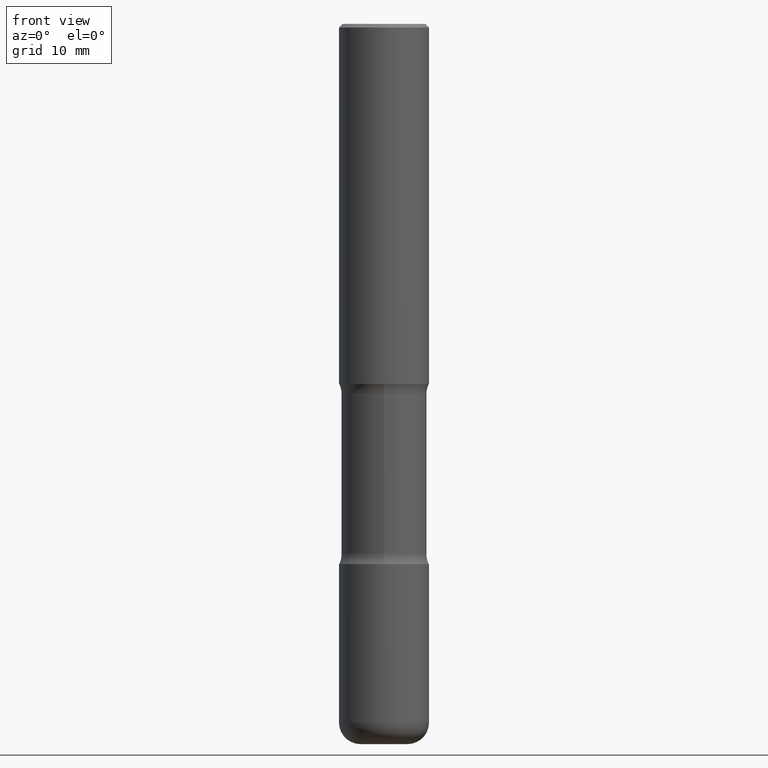
[diagram: clean part render]
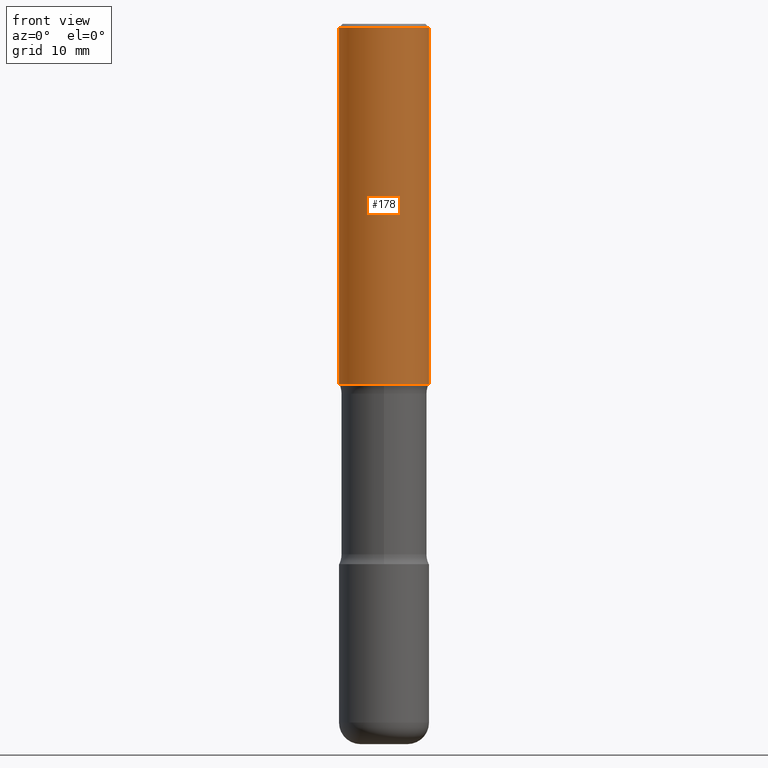
[diagram: same view with one face highlighted and labeled with its STEP entity id]
A machine part, front view. The second image highlights one B-rep face of the part: STEP entity #178.
In plain terms, the highlighted cylindrical surface (partial cylindrical patch) has radius 6.35 mm, axis along (-0, 0, 1).
Its self-contained STEP definition (entity closure, byte-faithful):
#32 = VERTEX_POINT ( 'NONE', #112 ) ;
#41 = LINE ( 'NONE', #267, #84 ) ;
#49 = CARTESIAN_POINT ( 'NONE',  ( 0.000000000000000000, 0.000000000000000000, 0.000000000000000000 ) ) ;
#57 = CIRCLE ( 'NONE', #109, 0.2499999999999999167 ) ;
#80 = EDGE_CURVE ( 'NONE', #295, #490, #41, .T. ) ;
#84 = VECTOR ( 'NONE', #481, 39.37007874015748143 ) ;
#89 = DIRECTION ( 'NONE',  ( -2.445468806185136877E-29, 3.491481338843145188E-15, 1.000000000000000000 ) ) ;
#109 = AXIS2_PLACEMENT_3D ( 'NONE', #169, #390, #255 ) ;
#110 = CIRCLE ( 'NONE', #318, 0.2500000000000001665 ) ;
#112 = CARTESIAN_POINT ( 'NONE',  ( -0.2499999999999999167, 1.675911042644703182E-15, -0.02000000000000006981 ) ) ;
#138 = CARTESIAN_POINT ( 'NONE',  ( 4.890937612370273194E-29, -6.982962677686291165E-15, -2.000000000000000000 ) ) ;
#140 = ORIENTED_EDGE ( 'NONE', *, *, #80, .T. ) ;
#169 = CARTESIAN_POINT ( 'NONE',  ( 4.890937612370289799E-31, -6.982962677686315028E-17, -0.02000000000000006981 ) ) ;
#178 = ADVANCED_FACE ( 'NONE', ( #311 ), #519, .T. ) ;
#208 = CARTESIAN_POINT ( 'NONE',  ( 0.2500000000000001665, -8.728703347107858632E-15, -2.000000000000000000 ) ) ;
#219 = AXIS2_PLACEMENT_3D ( 'NONE', #49, #435, #224 ) ;
#224 = DIRECTION ( 'NONE',  ( 1.000000000000000000, -6.982962677686267499E-15, 4.876176775795935793E-29 ) ) ;
#233 = CARTESIAN_POINT ( 'NONE',  ( -0.2500000000000001665, -1.750039312831323809E-15, -2.000000000000000000 ) ) ;
#242 = VECTOR ( 'NONE', #89, 39.37007874015748143 ) ;
#254 = EDGE_LOOP ( 'NONE', ( #547, #271, #140, #325 ) ) ;
#255 = DIRECTION ( 'NONE',  ( 1.000000000000000000, -6.982962677686267499E-15, 0.000000000000000000 ) ) ;
#267 = CARTESIAN_POINT ( 'NONE',  ( 0.2500000000000000555, -1.745740669421567269E-15, 1.219044193948984228E-29 ) ) ;
#269 = DIRECTION ( 'NONE',  ( -2.445468806185136597E-29, 3.491481338843145583E-15, 1.000000000000000000 ) ) ;
#271 = ORIENTED_EDGE ( 'NONE', *, *, #512, .T. ) ;
#283 = CARTESIAN_POINT ( 'NONE',  ( 0.2499999999999999167, -1.784954126219745400E-15, -0.02000000000000006981 ) ) ;
#295 = VERTEX_POINT ( 'NONE', #208 ) ;
#305 = EDGE_CURVE ( 'NONE', #32, #490, #57, .T. ) ;
#311 = FACE_OUTER_BOUND ( 'NONE', #254, .T. ) ;
#318 = AXIS2_PLACEMENT_3D ( 'NONE', #138, #269, #437 ) ;
#320 = EDGE_CURVE ( 'NONE', #418, #32, #352, .T. ) ;
#325 = ORIENTED_EDGE ( 'NONE', *, *, #305, .F. ) ;
#352 = LINE ( 'NONE', #507, #242 ) ;
#390 = DIRECTION ( 'NONE',  ( -2.445468806185136597E-29, 3.491481338843145583E-15, 1.000000000000000000 ) ) ;
#418 = VERTEX_POINT ( 'NONE', #233 ) ;
#435 = DIRECTION ( 'NONE',  ( -2.445468806185136597E-29, 3.491481338843145583E-15, 1.000000000000000000 ) ) ;
#437 = DIRECTION ( 'NONE',  ( 1.000000000000000000, -6.982962677686265922E-15, 0.000000000000000000 ) ) ;
#481 = DIRECTION ( 'NONE',  ( -2.445468806185136877E-29, 3.491481338843145188E-15, 1.000000000000000000 ) ) ;
#490 = VERTEX_POINT ( 'NONE', #283 ) ;
#507 = CARTESIAN_POINT ( 'NONE',  ( -0.2500000000000000555, 1.776356839400250859E-15, -1.229733772563726866E-29 ) ) ;
#512 = EDGE_CURVE ( 'NONE', #418, #295, #110, .T. ) ;
#519 = CYLINDRICAL_SURFACE ( 'NONE', #219, 0.2500000000000000555 ) ;
#547 = ORIENTED_EDGE ( 'NONE', *, *, #320, .F. ) ;